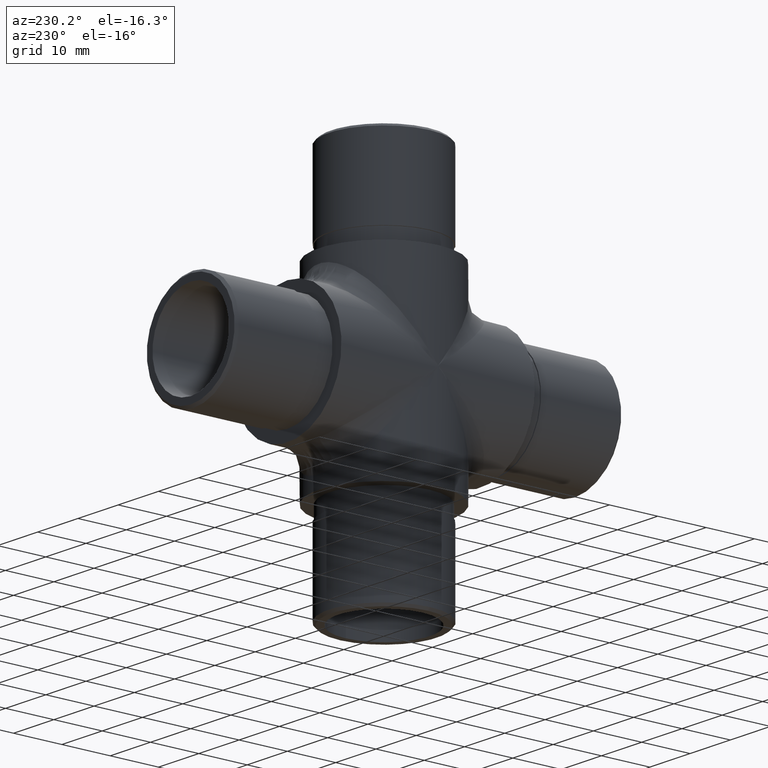
[diagram: clean part render]
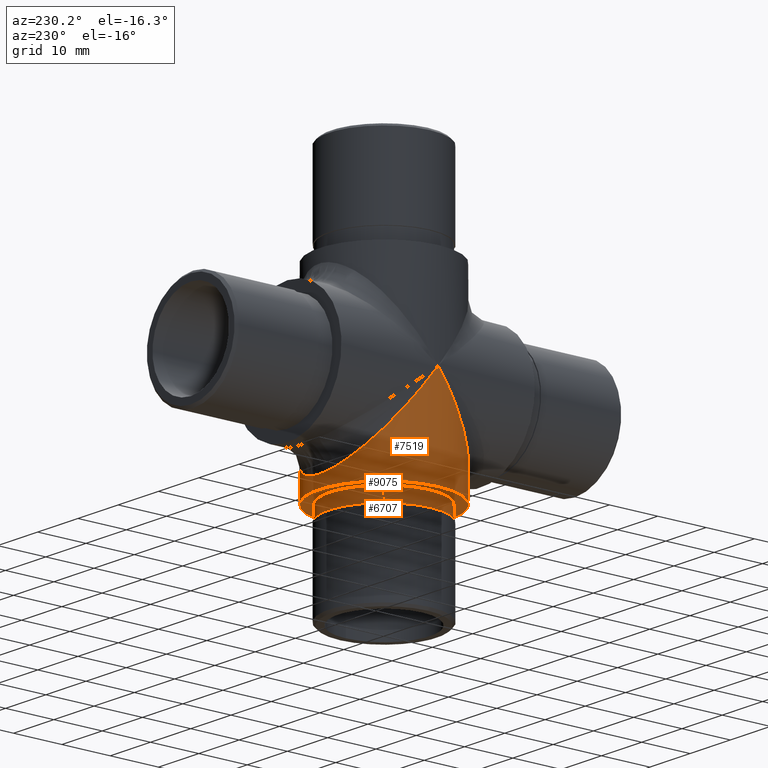
[diagram: same view with one multi-face feature highlighted, each face labeled with its STEP entity id]
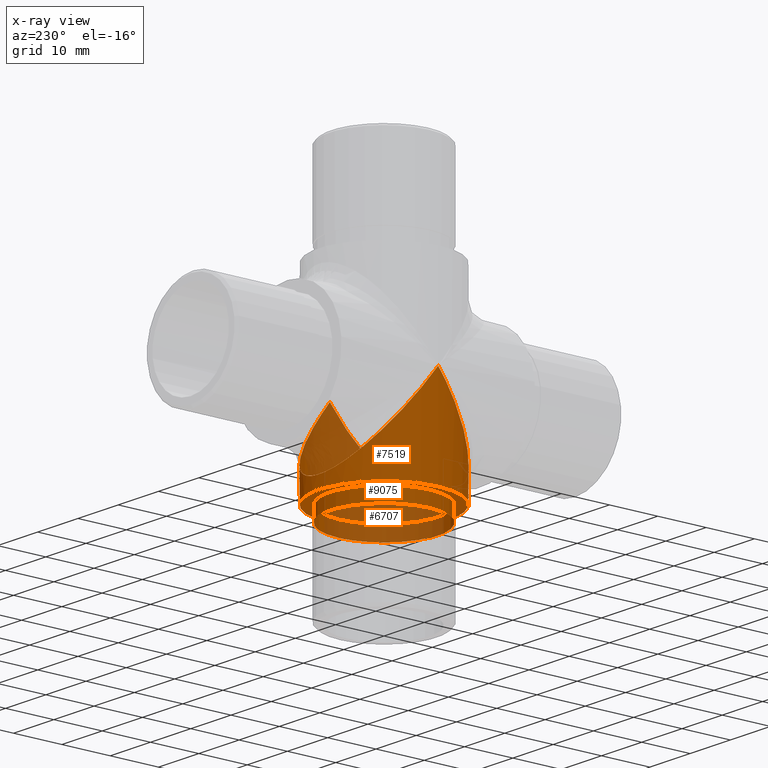
[diagram: x-ray of the same camera — body ghosted, the whole feature saturated]
A machine part, auxiliary view. The highlighted faces form ONE feature: a stepped (counterbored) hole: 2 coaxial cylindrical walls of radii 11.2 -> 13.45 mm joined by 1 annular planar shoulder face(s). The faces share edges in the B-rep.
The next image is the same camera in x-ray: the body ghosted and the whole hole feature saturated, so the bore chain is visible through the body.
Their STEP definitions:
[1] entity #7519 (Cylinder):
#1355 = CARTESIAN_POINT ( 'NONE',  ( -13.45000000000000100, 0.0000000000000000000, 0.0000000000000000000 ) ) ;
#1748 = VERTEX_POINT ( 'NONE', #7982 ) ;
#2459 = CARTESIAN_POINT ( 'NONE',  ( 13.45000000000000100, 0.0000000000000000000, 0.0000000000000000000 ) ) ;
#3336 = ORIENTED_EDGE ( 'NONE', *, *, #11841, .T. ) ;
#3423 = EDGE_LOOP ( 'NONE', ( #11026 ) ) ;
#3641 = CARTESIAN_POINT ( 'NONE',  ( 0.0000000000000000000, 0.0000000000000000000, 20.00000000000000000 ) ) ;
#4663 = FACE_OUTER_BOUND ( 'NONE', #3423, .T. ) ;
#4679 = DIRECTION ( 'NONE',  ( 1.000000000000000000, 0.0000000000000000000, 0.0000000000000000000 ) ) ;
#4720 = DIRECTION ( 'NONE',  ( -0.0000000000000000000, -0.0000000000000000000, -1.000000000000000000 ) ) ;
#4970 = CARTESIAN_POINT ( 'NONE',  ( 13.45000000000000100, 0.0000000000000000000, 0.0000000000000000000 ) ) ;
#6563 = ORIENTED_EDGE ( 'NONE', *, *, #11288, .T. ) ;
#6686 = EDGE_LOOP ( 'NONE', ( #6563, #3336 ) ) ;
#6819 = CIRCLE ( 'NONE', #9597, 13.45000000000000100 ) ;
#6836 = VERTEX_POINT ( 'NONE', #2459 ) ;
#7131 = CARTESIAN_POINT ( 'NONE',  ( 13.45000000000000100, 0.0000000000000000000, 0.0000000000000000000 ) ) ;
#7330 = CARTESIAN_POINT ( 'NONE',  ( -13.45000000000000100, 0.0000000000000000000, 0.0000000000000000000 ) ) ;
#7477 = EDGE_CURVE ( 'NONE', #1748, #1748, #6819, .T. ) ;
#7519 = ADVANCED_FACE ( 'NONE', ( #4663, #12194 ), #11868, .T. ) ;
#7982 = CARTESIAN_POINT ( 'NONE',  ( 13.45000000000000100, 0.0000000000000000000, -20.00000000000000000 ) ) ;
#8897 = CARTESIAN_POINT ( 'NONE',  ( -13.45000000000000100, 0.0000000000000000000, 0.0000000000000000000 ) ) ;
#9123 =( BOUNDED_CURVE ( )  B_SPLINE_CURVE ( 3, ( #7131, #9324, #12252, #1355 ),
 .UNSPECIFIED., .F., .T. ) 
 B_SPLINE_CURVE_WITH_KNOTS ( ( 4, 4 ),
 ( 4.712388980384689700, 7.853981633974482800 ),
 .UNSPECIFIED. ) 
 CURVE ( )  GEOMETRIC_REPRESENTATION_ITEM ( )  RATIONAL_B_SPLINE_CURVE ( ( 1.000000000000000000, 0.3333333333333333700, 0.3333333333333333700, 1.000000000000000000 ) ) 
 REPRESENTATION_ITEM ( '' )  );
#9324 = CARTESIAN_POINT ( 'NONE',  ( 13.44999999999999900, -26.89999999999999900, -34.89999999999998400 ) ) ;
#9597 = AXIS2_PLACEMENT_3D ( 'NONE', #12615, #9647, #4679 ) ;
#9647 = DIRECTION ( 'NONE',  ( 0.0000000000000000000, 0.0000000000000000000, 1.000000000000000000 ) ) ;
#9895 = CARTESIAN_POINT ( 'NONE',  ( 13.44999999999999400, 26.89999999999999900, -34.89999999999998400 ) ) ;
#10723 =( BOUNDED_CURVE ( )  B_SPLINE_CURVE ( 3, ( #8897, #11942, #9895, #4970 ),
 .UNSPECIFIED., .F., .F. ) 
 B_SPLINE_CURVE_WITH_KNOTS ( ( 4, 4 ),
 ( 4.712388980384689700, 7.853981633974482800 ),
 .UNSPECIFIED. ) 
 CURVE ( )  GEOMETRIC_REPRESENTATION_ITEM ( )  RATIONAL_B_SPLINE_CURVE ( ( 1.000000000000000000, 0.3333333333333333700, 0.3333333333333333700, 1.000000000000000000 ) ) 
 REPRESENTATION_ITEM ( '' )  );
#10942 = AXIS2_PLACEMENT_3D ( 'NONE', #3641, #4720, #11725 ) ;
#11026 = ORIENTED_EDGE ( 'NONE', *, *, #7477, .T. ) ;
#11288 = EDGE_CURVE ( 'NONE', #6836, #12795, #9123, .T. ) ;
#11725 = DIRECTION ( 'NONE',  ( -1.000000000000000000, 0.0000000000000000000, 0.0000000000000000000 ) ) ;
#11841 = EDGE_CURVE ( 'NONE', #12795, #6836, #10723, .T. ) ;
#11868 = CYLINDRICAL_SURFACE ( 'NONE', #10942, 13.45000000000000100 ) ;
#11942 = CARTESIAN_POINT ( 'NONE',  ( -13.44999999999999900, 26.89999999999999900, -34.89999999999998400 ) ) ;
#12194 = FACE_OUTER_BOUND ( 'NONE', #6686, .T. ) ;
#12252 = CARTESIAN_POINT ( 'NONE',  ( -13.44999999999999400, -26.89999999999999900, -34.89999999999998400 ) ) ;
#12615 = CARTESIAN_POINT ( 'NONE',  ( 0.0000000000000000000, 0.0000000000000000000, -20.00000000000000000 ) ) ;
#12795 = VERTEX_POINT ( 'NONE', #7330 ) ;
[2] entity #6707 (Cylinder):
#621 = CYLINDRICAL_SURFACE ( 'NONE', #1984, 11.20000000000000100 ) ;
#1382 = ORIENTED_EDGE ( 'NONE', *, *, #1719, .T. ) ;
#1719 = EDGE_CURVE ( 'NONE', #3145, #3145, #9664, .T. ) ;
#1984 = AXIS2_PLACEMENT_3D ( 'NONE', #12399, #6357, #2312 ) ;
#2312 = DIRECTION ( 'NONE',  ( 1.000000000000000000, 0.0000000000000000000, 0.0000000000000000000 ) ) ;
#2472 = DIRECTION ( 'NONE',  ( -0.0000000000000000000, -0.0000000000000000000, 1.000000000000000000 ) ) ;
#2892 = DIRECTION ( 'NONE',  ( -1.000000000000000000, 0.0000000000000000000, 0.0000000000000000000 ) ) ;
#3145 = VERTEX_POINT ( 'NONE', #5580 ) ;
#3771 = EDGE_LOOP ( 'NONE', ( #1382 ) ) ;
#4043 = FACE_OUTER_BOUND ( 'NONE', #11901, .T. ) ;
#4407 = AXIS2_PLACEMENT_3D ( 'NONE', #7408, #2472, #12515 ) ;
#4781 = CARTESIAN_POINT ( 'NONE',  ( 0.0000000000000000000, 0.0000000000000000000, -23.00000000000000000 ) ) ;
#5246 = EDGE_CURVE ( 'NONE', #10317, #10317, #8595, .T. ) ;
#5580 = CARTESIAN_POINT ( 'NONE',  ( -11.20000000000000100, 0.0000000000000000000, -23.00000000000000000 ) ) ;
#6357 = DIRECTION ( 'NONE',  ( -0.0000000000000000000, -0.0000000000000000000, 1.000000000000000000 ) ) ;
#6707 = ADVANCED_FACE ( 'NONE', ( #10283, #4043 ), #621, .T. ) ;
#7408 = CARTESIAN_POINT ( 'NONE',  ( 0.0000000000000000000, 0.0000000000000000000, -20.00000000000000000 ) ) ;
#8595 = CIRCLE ( 'NONE', #4407, 11.20000000000000100 ) ;
#9664 = CIRCLE ( 'NONE', #10751, 11.20000000000000100 ) ;
#9770 = CARTESIAN_POINT ( 'NONE',  ( 11.20000000000000100, 0.0000000000000000000, -20.00000000000000000 ) ) ;
#10283 = FACE_OUTER_BOUND ( 'NONE', #3771, .T. ) ;
#10317 = VERTEX_POINT ( 'NONE', #9770 ) ;
#10751 = AXIS2_PLACEMENT_3D ( 'NONE', #4781, #10941, #2892 ) ;
#10941 = DIRECTION ( 'NONE',  ( -0.0000000000000000000, -0.0000000000000000000, 1.000000000000000000 ) ) ;
#11901 = EDGE_LOOP ( 'NONE', ( #11910 ) ) ;
#11910 = ORIENTED_EDGE ( 'NONE', *, *, #5246, .F. ) ;
#12399 = CARTESIAN_POINT ( 'NONE',  ( 0.0000000000000000000, 0.0000000000000000000, -23.00000000000000000 ) ) ;
#12515 = DIRECTION ( 'NONE',  ( 1.000000000000000000, 0.0000000000000000000, 0.0000000000000000000 ) ) ;
[3] entity #9075 (Plane):
#138 = PLANE ( 'NONE',  #9158 ) ;
#185 = FACE_OUTER_BOUND ( 'NONE', #1781, .T. ) ;
#322 = ORIENTED_EDGE ( 'NONE', *, *, #5246, .T. ) ;
#1748 = VERTEX_POINT ( 'NONE', #7982 ) ;
#1781 = EDGE_LOOP ( 'NONE', ( #12767 ) ) ;
#2269 = CARTESIAN_POINT ( 'NONE',  ( 0.0000000000000000000, 0.0000000000000000000, -20.00000000000000000 ) ) ;
#2472 = DIRECTION ( 'NONE',  ( -0.0000000000000000000, -0.0000000000000000000, 1.000000000000000000 ) ) ;
#4407 = AXIS2_PLACEMENT_3D ( 'NONE', #7408, #2472, #12515 ) ;
#4679 = DIRECTION ( 'NONE',  ( 1.000000000000000000, 0.0000000000000000000, 0.0000000000000000000 ) ) ;
#5246 = EDGE_CURVE ( 'NONE', #10317, #10317, #8595, .T. ) ;
#6819 = CIRCLE ( 'NONE', #9597, 13.45000000000000100 ) ;
#7150 = DIRECTION ( 'NONE',  ( 1.000000000000000000, 0.0000000000000000000, -0.0000000000000000000 ) ) ;
#7408 = CARTESIAN_POINT ( 'NONE',  ( 0.0000000000000000000, 0.0000000000000000000, -20.00000000000000000 ) ) ;
#7477 = EDGE_CURVE ( 'NONE', #1748, #1748, #6819, .T. ) ;
#7982 = CARTESIAN_POINT ( 'NONE',  ( 13.45000000000000100, 0.0000000000000000000, -20.00000000000000000 ) ) ;
#8595 = CIRCLE ( 'NONE', #4407, 11.20000000000000100 ) ;
#8912 = EDGE_LOOP ( 'NONE', ( #322 ) ) ;
#9075 = ADVANCED_FACE ( 'NONE', ( #10012, #185 ), #138, .F. ) ;
#9158 = AXIS2_PLACEMENT_3D ( 'NONE', #2269, #10118, #7150 ) ;
#9597 = AXIS2_PLACEMENT_3D ( 'NONE', #12615, #9647, #4679 ) ;
#9647 = DIRECTION ( 'NONE',  ( 0.0000000000000000000, 0.0000000000000000000, 1.000000000000000000 ) ) ;
#9770 = CARTESIAN_POINT ( 'NONE',  ( 11.20000000000000100, 0.0000000000000000000, -20.00000000000000000 ) ) ;
#10012 = FACE_BOUND ( 'NONE', #8912, .T. ) ;
#10118 = DIRECTION ( 'NONE',  ( 0.0000000000000000000, 0.0000000000000000000, 1.000000000000000000 ) ) ;
#10317 = VERTEX_POINT ( 'NONE', #9770 ) ;
#12515 = DIRECTION ( 'NONE',  ( 1.000000000000000000, 0.0000000000000000000, 0.0000000000000000000 ) ) ;
#12615 = CARTESIAN_POINT ( 'NONE',  ( 0.0000000000000000000, 0.0000000000000000000, -20.00000000000000000 ) ) ;
#12767 = ORIENTED_EDGE ( 'NONE', *, *, #7477, .F. ) ;